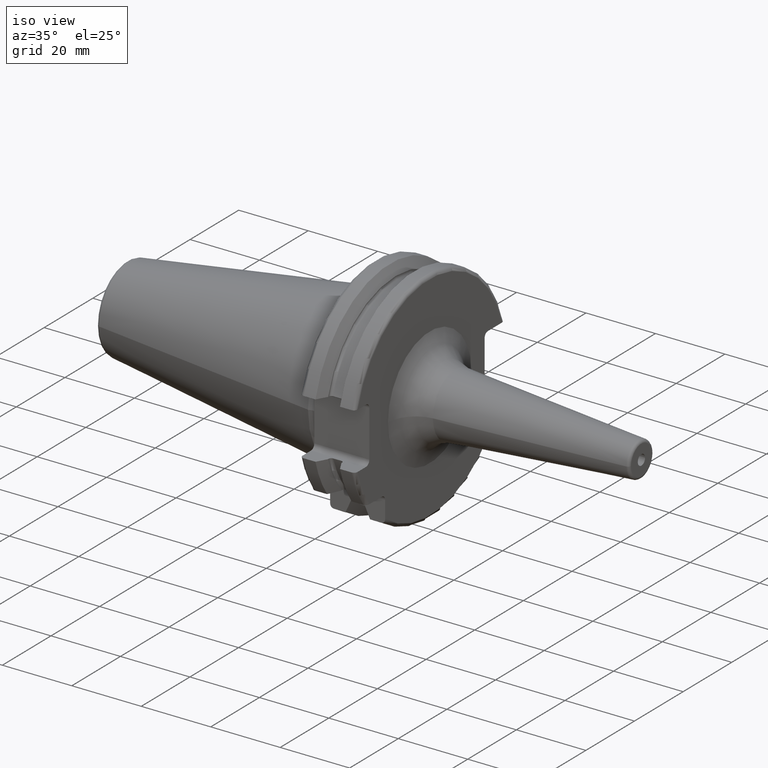
[diagram: clean part render]
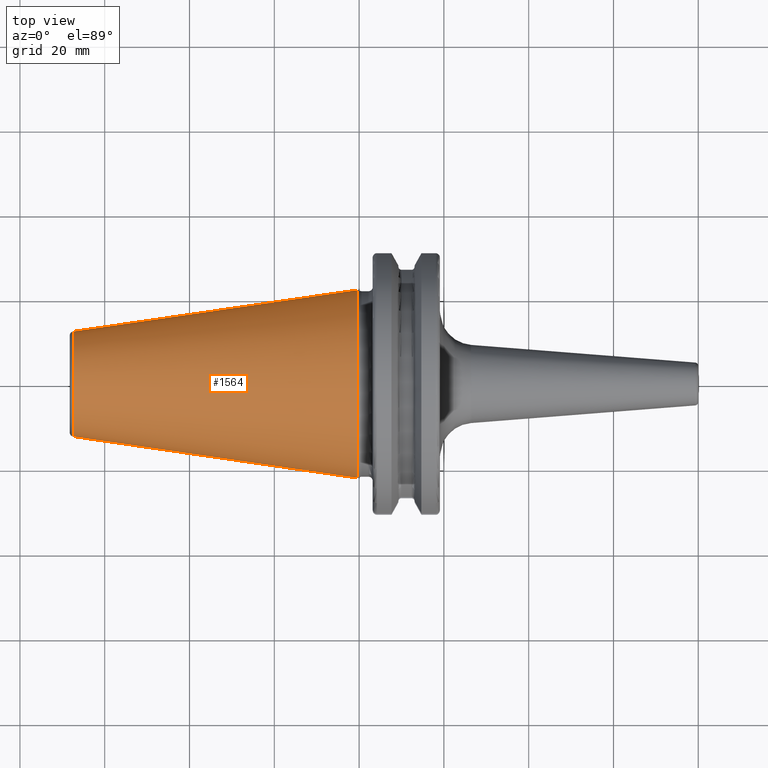
[diagram: tour spotlight — one face highlighted and labeled with its STEP entity id]
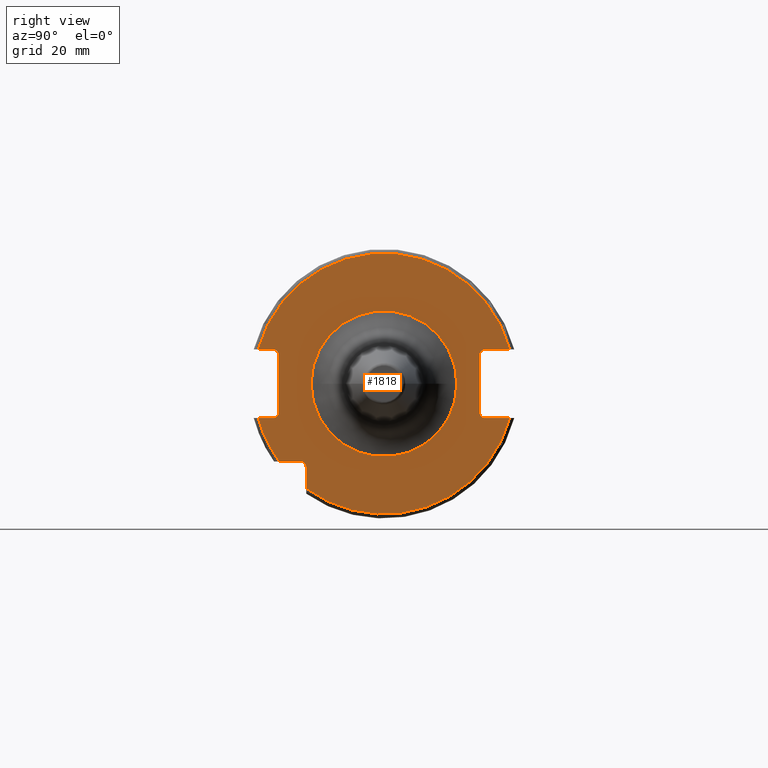
[diagram: tour spotlight — one face highlighted and labeled with its STEP entity id]
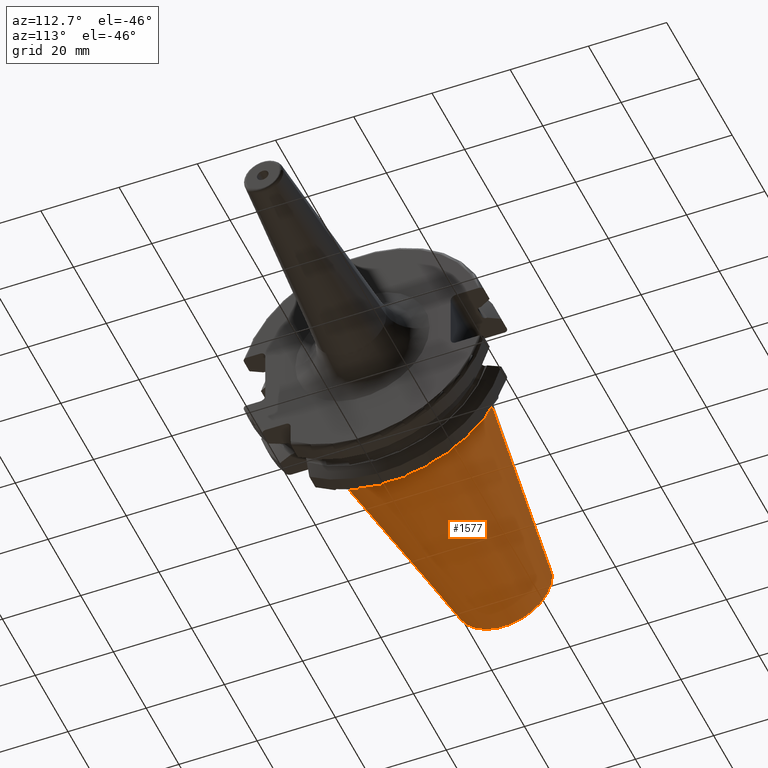
[diagram: tour spotlight — one face highlighted and labeled with its STEP entity id]
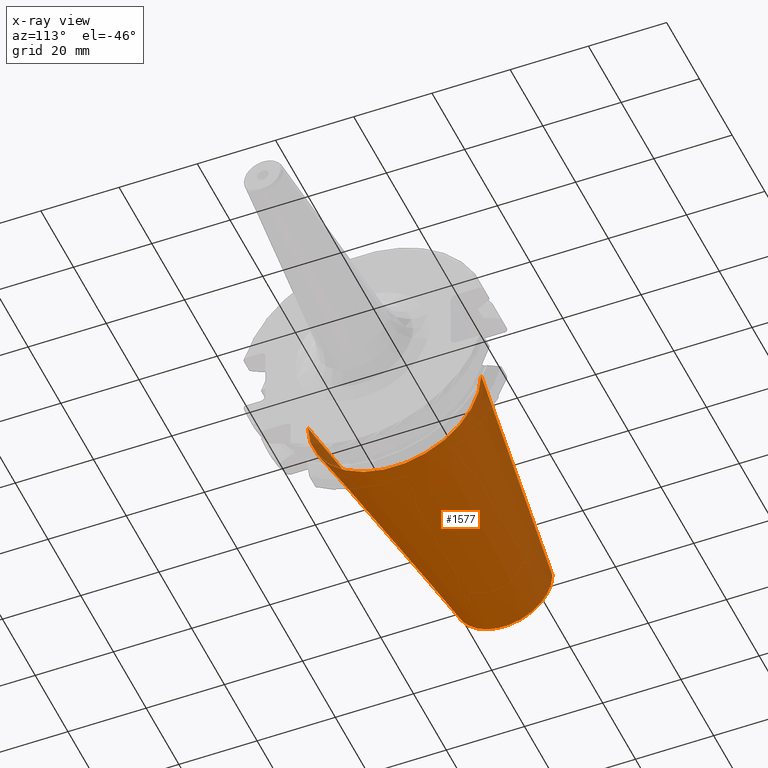
[diagram: x-ray of the same camera — body ghosted, this tour face saturated]
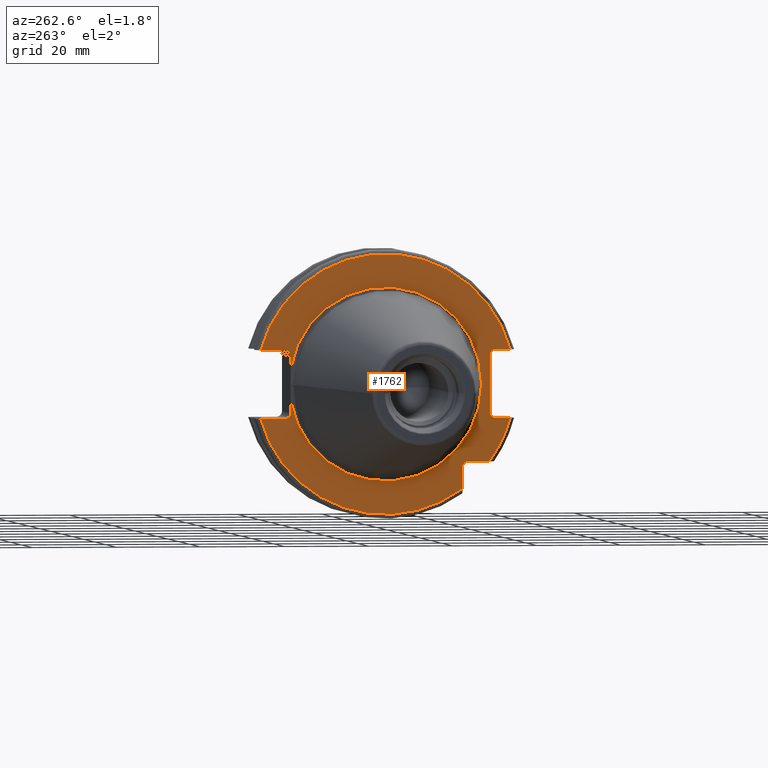
[diagram: tour spotlight — one face highlighted and labeled with its STEP entity id]
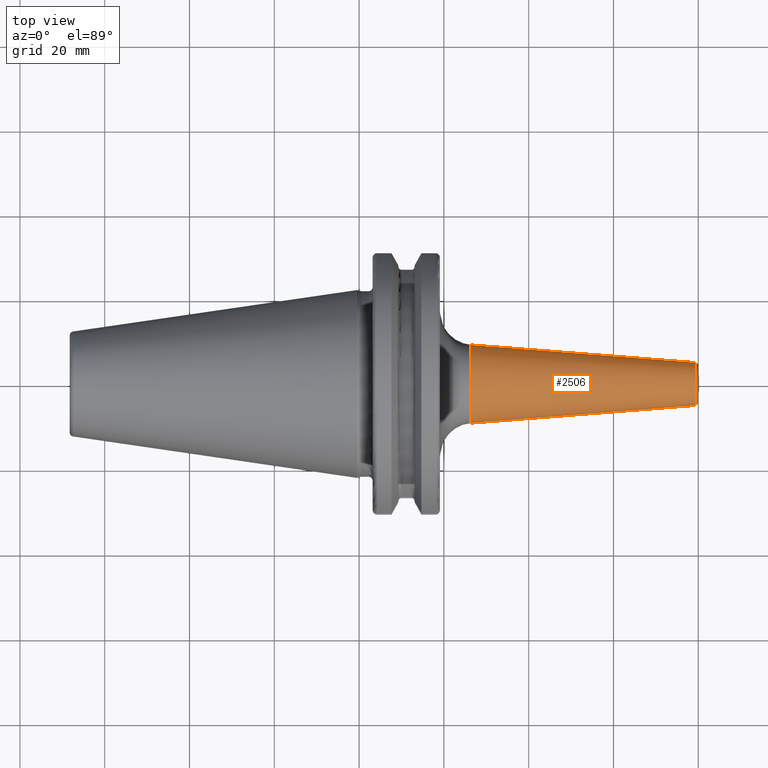
[diagram: tour spotlight — one face highlighted and labeled with its STEP entity id]
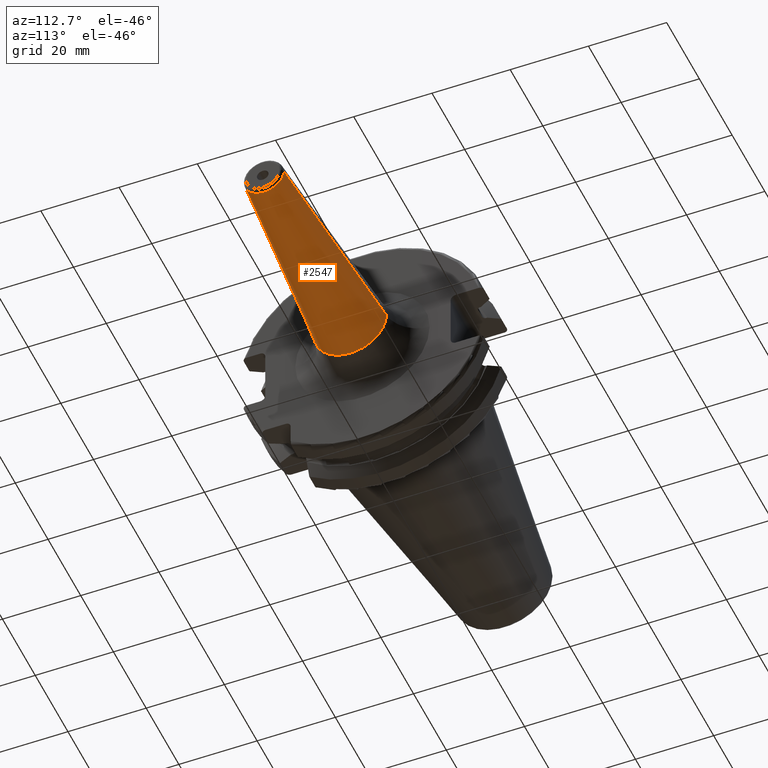
[diagram: tour spotlight — one face highlighted and labeled with its STEP entity id]
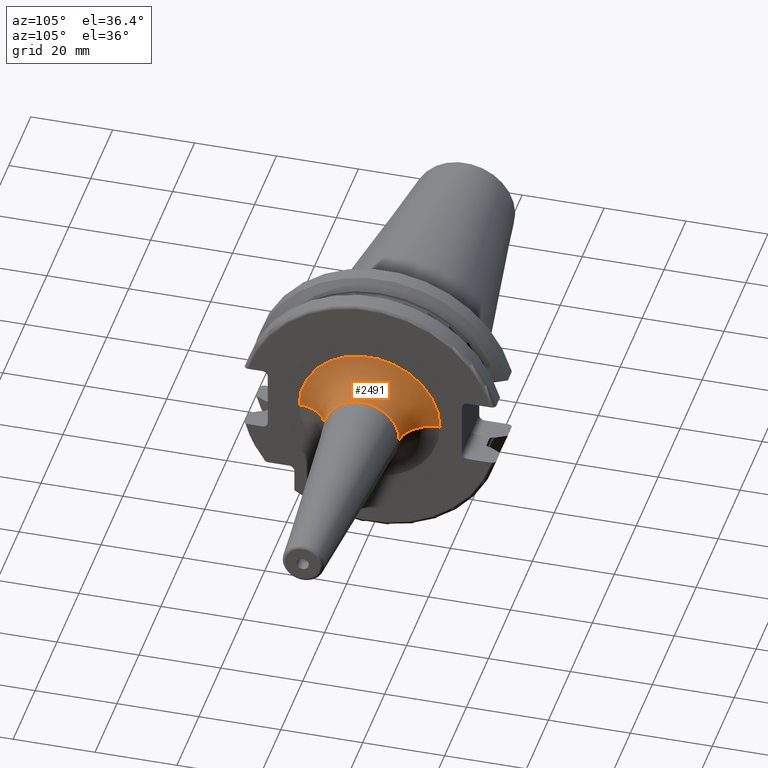
[diagram: tour spotlight — one face highlighted and labeled with its STEP entity id]
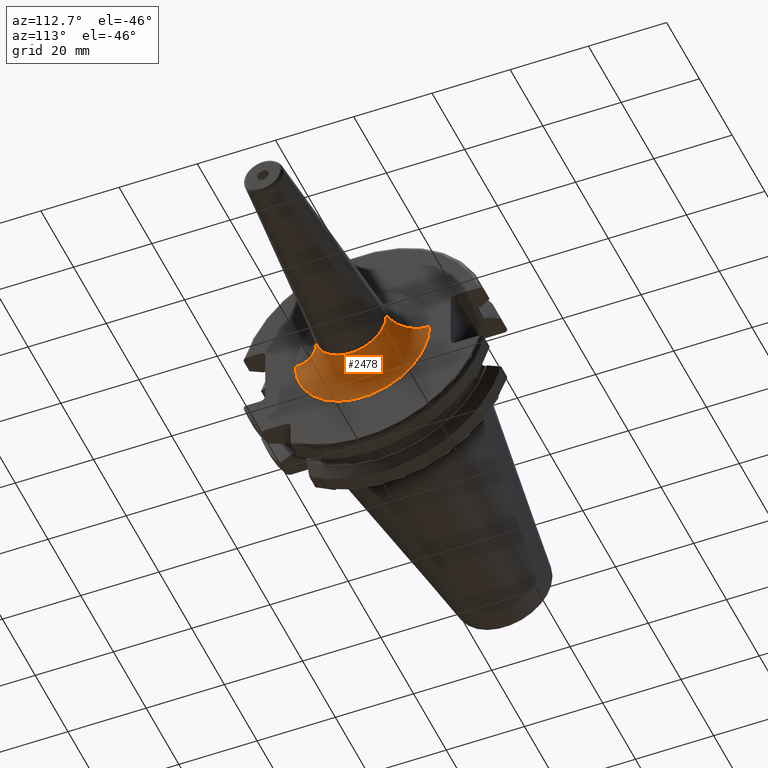
[diagram: tour spotlight — one face highlighted and labeled with its STEP entity id]
A machine part: a face-by-face anatomy tour. The part has 95 B-rep faces; the first image is the clean iso view, then the 8 largest visible faces are spotlighted one at a time (largest first), each with its STEP entity span.

Face 1 — top view, entity #1564. In plain terms, the highlighted conical surface has half-angle 8.298 deg.
Definition (entity closure, byte-faithful):
#37=CARTESIAN_POINT('',(-6.743710273571E1,0.E0,0.E0));
#38=DIRECTION('',(1.E0,0.E0,0.E0));
#39=DIRECTION('',(0.E0,1.E0,0.E0));
#40=AXIS2_PLACEMENT_3D('',#37,#38,#39);
#42=CARTESIAN_POINT('',(-4.896823332305E-1,0.E0,0.E0));
#43=DIRECTION('',(1.E0,0.E0,0.E0));
#44=DIRECTION('',(0.E0,1.E0,0.E0));
#45=AXIS2_PLACEMENT_3D('',#42,#43,#44);
#47=DIRECTION('',(-9.895312636440E-1,-1.443186691705E-1,0.E0));
#48=VECTOR('',#47,6.765568998391E1);
#49=CARTESIAN_POINT('',(-4.896823332305E-1,2.215358204157E1,0.E0));
#50=LINE('',#49,#48);
#51=DIRECTION('',(-9.895312636440E-1,1.443186691705E-1,0.E0));
#52=VECTOR('',#51,6.765568998391E1);
#53=CARTESIAN_POINT('',(-4.896823332305E-1,-2.215358204157E1,0.E0));
#54=LINE('',#53,#52);
#1246=CARTESIAN_POINT('',(-6.743710273571E1,1.238960290128E1,0.E0));
#1248=VERTEX_POINT('',#1246);
#1250=CARTESIAN_POINT('',(-6.743710273571E1,-1.238960290128E1,0.E0));
#1252=VERTEX_POINT('',#1250);
#1314=CARTESIAN_POINT('',(-4.896823332305E-1,2.215358204157E1,0.E0));
#1315=VERTEX_POINT('',#1314);
#1316=CARTESIAN_POINT('',(-4.896823332305E-1,-2.215358204157E1,0.E0));
#1317=VERTEX_POINT('',#1316);
#1550=CARTESIAN_POINT('',(-3.396339253447E1,0.E0,0.E0));
#1551=DIRECTION('',(1.E0,0.E0,0.E0));
#1552=DIRECTION('',(0.E0,-1.E0,0.E0));
#1553=AXIS2_PLACEMENT_3D('',#1550,#1551,#1552);
#1554=CONICAL_SURFACE('',#1553,1.727159247143E1,8.297826828206E0);
#1556=ORIENTED_EDGE('',*,*,#1555,.F.);
#1558=ORIENTED_EDGE('',*,*,#1557,.T.);
#1560=ORIENTED_EDGE('',*,*,#1559,.T.);
#1561=ORIENTED_EDGE('',*,*,#1543,.F.);
#1562=EDGE_LOOP('',(#1556,#1558,#1560,#1561));
#1563=FACE_OUTER_BOUND('',#1562,.F.);
#1564=ADVANCED_FACE('',(#1563),#1554,.T.);
#41=CIRCLE('',#40,1.238960290128E1);
#46=CIRCLE('',#45,2.215358204157E1);
#1543=EDGE_CURVE('',#1248,#1252,#41,.T.);
#1555=EDGE_CURVE('',#1315,#1248,#50,.T.);
#1557=EDGE_CURVE('',#1315,#1317,#46,.T.);
#1559=EDGE_CURVE('',#1317,#1252,#54,.T.);

Face 2 — right view, entity #1818. In plain terms, the highlighted planar face has unit normal (1, 0, 0).
Definition (entity closure, byte-faithful):
#130=CARTESIAN_POINT('',(1.905E1,2.39E1,-6.75E0));
#131=DIRECTION('',(-1.E0,0.E0,0.E0));
#132=DIRECTION('',(0.E0,0.E0,-1.E0));
#133=AXIS2_PLACEMENT_3D('',#130,#131,#132);
#195=CARTESIAN_POINT('',(1.905E1,2.39E1,6.75E0));
#196=DIRECTION('',(-1.E0,0.E0,0.E0));
#197=DIRECTION('',(0.E0,-1.E0,0.E0));
#198=AXIS2_PLACEMENT_3D('',#195,#196,#197);
#205=DIRECTION('',(0.E0,-1.E0,0.E0));
#206=VECTOR('',#205,5.776950757280E0);
#207=CARTESIAN_POINT('',(1.905E1,2.967695075728E1,8.1E0));
#208=LINE('',#207,#206);
#209=DIRECTION('',(0.E0,0.E0,-1.E0));
#210=VECTOR('',#209,1.35E1);
#211=CARTESIAN_POINT('',(1.905E1,2.255E1,6.75E0));
#212=LINE('',#211,#210);
#213=DIRECTION('',(0.E0,-1.E0,0.E0));
#214=VECTOR('',#213,5.776950757280E0);
#215=CARTESIAN_POINT('',(1.905E1,2.967695075728E1,-8.1E0));
#216=LINE('',#215,#214);
#217=DIRECTION('',(0.E0,0.E0,1.E0));
#218=VECTOR('',#217,4.990259339464E0);
#219=CARTESIAN_POINT('',(1.905E1,-1.835E1,-2.469025933946E1));
#220=LINE('',#219,#218);
#221=DIRECTION('',(0.E0,-1.E0,0.E0));
#222=VECTOR('',#221,4.990259339464E0);
#223=CARTESIAN_POINT('',(1.905E1,-1.97E1,-1.835E1));
#224=LINE('',#223,#222);
#225=DIRECTION('',(0.E0,1.E0,0.E0));
#226=VECTOR('',#225,3.476950757280E0);
#227=CARTESIAN_POINT('',(1.905E1,-2.967695075728E1,-8.1E0));
#228=LINE('',#227,#226);
#229=DIRECTION('',(0.E0,0.E0,1.E0));
#230=VECTOR('',#229,1.35E1);
#231=CARTESIAN_POINT('',(1.905E1,-2.485E1,-6.75E0));
#232=LINE('',#231,#230);
#233=DIRECTION('',(0.E0,1.E0,0.E0));
#234=VECTOR('',#233,3.476950757280E0);
#235=CARTESIAN_POINT('',(1.905E1,-2.967695075728E1,8.1E0));
#236=LINE('',#235,#234);
#237=CARTESIAN_POINT('',(1.905E1,0.E0,0.E0));
#238=DIRECTION('',(1.E0,0.E0,0.E0));
#239=DIRECTION('',(0.E0,-1.E0,0.E0));
#240=AXIS2_PLACEMENT_3D('',#237,#238,#239);
#242=CARTESIAN_POINT('',(1.905E1,0.E0,0.E0));
#243=DIRECTION('',(1.E0,0.E0,0.E0));
#244=DIRECTION('',(0.E0,1.E0,0.E0));
#245=AXIS2_PLACEMENT_3D('',#242,#243,#244);
#251=CARTESIAN_POINT('',(1.905E1,2.967695075728E1,8.1E0));
#262=CARTESIAN_POINT('',(1.905E1,0.E0,0.E0));
#263=DIRECTION('',(1.E0,0.E0,0.E0));
#264=DIRECTION('',(0.E0,9.647119303464E-1,2.633075985372E-1));
#265=AXIS2_PLACEMENT_3D('',#262,#263,#264);
#276=CARTESIAN_POINT('',(1.905E1,-2.967695075728E1,8.1E0));
#282=CARTESIAN_POINT('',(1.905E1,-2.62E1,6.75E0));
#283=DIRECTION('',(-1.E0,0.E0,0.E0));
#284=DIRECTION('',(0.E0,0.E0,1.E0));
#285=AXIS2_PLACEMENT_3D('',#282,#283,#284);
#300=CARTESIAN_POINT('',(1.905E1,-2.62E1,-6.75E0));
#301=DIRECTION('',(-1.E0,0.E0,0.E0));
#302=DIRECTION('',(0.E0,1.E0,0.E0));
#303=AXIS2_PLACEMENT_3D('',#300,#301,#302);
#323=CARTESIAN_POINT('',(1.905E1,2.967695075728E1,-8.1E0));
#336=CARTESIAN_POINT('',(1.905E1,0.E0,0.E0));
#337=DIRECTION('',(-1.E0,0.E0,0.E0));
#338=DIRECTION('',(0.E0,9.647119303464E-1,-2.633075985372E-1));
#339=AXIS2_PLACEMENT_3D('',#336,#337,#338);
#341=CARTESIAN_POINT('',(1.905E1,-2.967695075728E1,-8.1E0));
#352=CARTESIAN_POINT('',(1.905E1,0.E0,0.E0));
#353=DIRECTION('',(-1.E0,0.E0,0.E0));
#354=DIRECTION('',(0.E0,-8.026089992512E-1,-5.965054855750E-1));
#355=AXIS2_PLACEMENT_3D('',#352,#353,#354);
#767=CARTESIAN_POINT('',(1.905E1,-1.97E1,-1.97E1));
#768=DIRECTION('',(-1.E0,0.E0,0.E0));
#769=DIRECTION('',(0.E0,0.E0,1.E0));
#770=AXIS2_PLACEMENT_3D('',#767,#768,#769);
#1403=VERTEX_POINT('',#251);
#1404=VERTEX_POINT('',#276);
#1407=VERTEX_POINT('',#323);
#1408=VERTEX_POINT('',#341);
#1419=CARTESIAN_POINT('',(1.905E1,-1.835E1,-2.469025933946E1));
#1420=VERTEX_POINT('',#1419);
#1427=CARTESIAN_POINT('',(1.905E1,2.39E1,-8.1E0));
#1429=VERTEX_POINT('',#1427);
#1431=CARTESIAN_POINT('',(1.905E1,2.255E1,-6.75E0));
#1433=VERTEX_POINT('',#1431);
#1435=CARTESIAN_POINT('',(1.905E1,2.255E1,6.75E0));
#1437=VERTEX_POINT('',#1435);
#1439=CARTESIAN_POINT('',(1.905E1,2.39E1,8.1E0));
#1441=VERTEX_POINT('',#1439);
#1443=CARTESIAN_POINT('',(1.905E1,-2.485E1,-6.75E0));
#1445=VERTEX_POINT('',#1443);
#1447=CARTESIAN_POINT('',(1.905E1,-2.62E1,-8.1E0));
#1449=VERTEX_POINT('',#1447);
#1451=CARTESIAN_POINT('',(1.905E1,-2.62E1,8.1E0));
#1453=VERTEX_POINT('',#1451);
#1455=CARTESIAN_POINT('',(1.905E1,-2.485E1,6.75E0));
#1457=VERTEX_POINT('',#1455);
#1459=CARTESIAN_POINT('',(1.905E1,-1.97E1,-1.835E1));
#1460=CARTESIAN_POINT('',(1.905E1,-2.469025933946E1,-1.835E1));
#1461=VERTEX_POINT('',#1459);
#1462=VERTEX_POINT('',#1460);
#1463=CARTESIAN_POINT('',(1.905E1,-1.835E1,-1.97E1));
#1464=VERTEX_POINT('',#1463);
#1480=CARTESIAN_POINT('',(1.905E1,-1.719199296423E1,0.E0));
#1481=CARTESIAN_POINT('',(1.905E1,1.719199296423E1,0.E0));
#1482=VERTEX_POINT('',#1480);
#1483=VERTEX_POINT('',#1481);
#1777=CARTESIAN_POINT('',(1.905E1,0.E0,0.E0));
#1778=DIRECTION('',(1.E0,0.E0,0.E0));
#1779=DIRECTION('',(0.E0,-1.E0,0.E0));
#1780=AXIS2_PLACEMENT_3D('',#1777,#1778,#1779);
#1781=PLANE('',#1780);
#1783=ORIENTED_EDGE('',*,*,#1782,.T.);
#1784=ORIENTED_EDGE('',*,*,#1769,.F.);
#1785=ORIENTED_EDGE('',*,*,#1658,.T.);
#1786=ORIENTED_EDGE('',*,*,#1679,.F.);
#1787=ORIENTED_EDGE('',*,*,#1717,.F.);
#1789=ORIENTED_EDGE('',*,*,#1788,.T.);
#1791=ORIENTED_EDGE('',*,*,#1790,.T.);
#1793=ORIENTED_EDGE('',*,*,#1792,.F.);
#1795=ORIENTED_EDGE('',*,*,#1794,.T.);
#1797=ORIENTED_EDGE('',*,*,#1796,.T.);
#1799=ORIENTED_EDGE('',*,*,#1798,.T.);
#1801=ORIENTED_EDGE('',*,*,#1800,.F.);
#1803=ORIENTED_EDGE('',*,*,#1802,.T.);
#1805=ORIENTED_EDGE('',*,*,#1804,.F.);
#1807=ORIENTED_EDGE('',*,*,#1806,.F.);
#1809=ORIENTED_EDGE('',*,*,#1808,.F.);
#1810=EDGE_LOOP('',(#1783,#1784,#1785,#1786,#1787,#1789,#1791,#1793,#1795,#1797,
#1799,#1801,#1803,#1805,#1807,#1809));
#1811=FACE_OUTER_BOUND('',#1810,.F.);
#1813=ORIENTED_EDGE('',*,*,#1812,.T.);
#1815=ORIENTED_EDGE('',*,*,#1814,.T.);
#1816=EDGE_LOOP('',(#1813,#1815));
#1817=FACE_BOUND('',#1816,.F.);
#1818=ADVANCED_FACE('',(#1811,#1817),#1781,.T.);
#134=CIRCLE('',#133,1.35E0);
#199=CIRCLE('',#198,1.35E0);
#241=CIRCLE('',#240,1.719199296423E1);
#246=CIRCLE('',#245,1.719199296423E1);
#266=CIRCLE('',#265,3.07625E1);
#286=CIRCLE('',#285,1.35E0);
#304=CIRCLE('',#303,1.35E0);
#340=CIRCLE('',#339,3.07625E1);
#356=CIRCLE('',#355,3.07625E1);
#771=CIRCLE('',#770,1.35E0);
#1658=EDGE_CURVE('',#1437,#1433,#212,.T.);
#1679=EDGE_CURVE('',#1429,#1433,#134,.T.);
#1717=EDGE_CURVE('',#1407,#1429,#216,.T.);
#1769=EDGE_CURVE('',#1437,#1441,#199,.T.);
#1782=EDGE_CURVE('',#1403,#1441,#208,.T.);
#1788=EDGE_CURVE('',#1407,#1420,#340,.T.);
#1790=EDGE_CURVE('',#1420,#1464,#220,.T.);
#1792=EDGE_CURVE('',#1461,#1464,#771,.T.);
#1794=EDGE_CURVE('',#1461,#1462,#224,.T.);
#1796=EDGE_CURVE('',#1462,#1408,#356,.T.);
#1798=EDGE_CURVE('',#1408,#1449,#228,.T.);
#1800=EDGE_CURVE('',#1445,#1449,#304,.T.);
#1802=EDGE_CURVE('',#1445,#1457,#232,.T.);
#1804=EDGE_CURVE('',#1453,#1457,#286,.T.);
#1806=EDGE_CURVE('',#1404,#1453,#236,.T.);
#1808=EDGE_CURVE('',#1403,#1404,#266,.T.);
#1812=EDGE_CURVE('',#1482,#1483,#241,.T.);
#1814=EDGE_CURVE('',#1483,#1482,#246,.T.);

Face 3 — auxiliary view, entity #1577. An x-ray twin of the same camera follows (body ghosted, this face saturated) — the face is partly hidden behind the body. In plain terms, the highlighted conical surface has half-angle 8.298 deg.
Definition (entity closure, byte-faithful):
#32=CARTESIAN_POINT('',(-6.743710273571E1,0.E0,0.E0));
#33=DIRECTION('',(-1.E0,0.E0,0.E0));
#34=DIRECTION('',(0.E0,1.E0,0.E0));
#35=AXIS2_PLACEMENT_3D('',#32,#33,#34);
#47=DIRECTION('',(-9.895312636440E-1,-1.443186691705E-1,0.E0));
#48=VECTOR('',#47,6.765568998391E1);
#49=CARTESIAN_POINT('',(-4.896823332305E-1,2.215358204157E1,0.E0));
#50=LINE('',#49,#48);
#51=DIRECTION('',(-9.895312636440E-1,1.443186691705E-1,0.E0));
#52=VECTOR('',#51,6.765568998391E1);
#53=CARTESIAN_POINT('',(-4.896823332305E-1,-2.215358204157E1,0.E0));
#54=LINE('',#53,#52);
#55=CARTESIAN_POINT('',(-4.896823332305E-1,0.E0,0.E0));
#56=DIRECTION('',(-1.E0,0.E0,0.E0));
#57=DIRECTION('',(0.E0,1.E0,0.E0));
#58=AXIS2_PLACEMENT_3D('',#55,#56,#57);
#1246=CARTESIAN_POINT('',(-6.743710273571E1,1.238960290128E1,0.E0));
#1248=VERTEX_POINT('',#1246);
#1250=CARTESIAN_POINT('',(-6.743710273571E1,-1.238960290128E1,0.E0));
#1252=VERTEX_POINT('',#1250);
#1314=CARTESIAN_POINT('',(-4.896823332305E-1,2.215358204157E1,0.E0));
#1315=VERTEX_POINT('',#1314);
#1316=CARTESIAN_POINT('',(-4.896823332305E-1,-2.215358204157E1,0.E0));
#1317=VERTEX_POINT('',#1316);
#1565=CARTESIAN_POINT('',(-3.396339253447E1,0.E0,0.E0));
#1566=DIRECTION('',(1.E0,0.E0,0.E0));
#1567=DIRECTION('',(0.E0,-1.E0,0.E0));
#1568=AXIS2_PLACEMENT_3D('',#1565,#1566,#1567);
#1569=CONICAL_SURFACE('',#1568,1.727159247143E1,8.297826828206E0);
#1570=ORIENTED_EDGE('',*,*,#1555,.T.);
#1571=ORIENTED_EDGE('',*,*,#1532,.T.);
#1572=ORIENTED_EDGE('',*,*,#1559,.F.);
#1574=ORIENTED_EDGE('',*,*,#1573,.F.);
#1575=EDGE_LOOP('',(#1570,#1571,#1572,#1574));
#1576=FACE_OUTER_BOUND('',#1575,.F.);
#1577=ADVANCED_FACE('',(#1576),#1569,.T.);
#36=CIRCLE('',#35,1.238960290128E1);
#59=CIRCLE('',#58,2.215358204157E1);
#1532=EDGE_CURVE('',#1248,#1252,#36,.T.);
#1555=EDGE_CURVE('',#1315,#1248,#50,.T.);
#1559=EDGE_CURVE('',#1317,#1252,#54,.T.);
#1573=EDGE_CURVE('',#1315,#1317,#59,.T.);

Face 4 — auxiliary view, entity #1762. In plain terms, the highlighted planar face has unit normal (1, 0, 0).
Definition (entity closure, byte-faithful):
#105=CARTESIAN_POINT('',(3.2E0,2.255E1,-3.842281223440E0));
#117=CARTESIAN_POINT('',(3.2E0,0.E0,0.E0));
#118=DIRECTION('',(-1.E0,0.E0,0.E0));
#119=DIRECTION('',(0.E0,9.857923497268E-1,-1.679685780739E-1));
#120=AXIS2_PLACEMENT_3D('',#117,#118,#119);
#135=CARTESIAN_POINT('',(3.2E0,2.39E1,-6.75E0));
#136=DIRECTION('',(1.E0,0.E0,0.E0));
#137=DIRECTION('',(0.E0,-1.E0,0.E0));
#138=AXIS2_PLACEMENT_3D('',#135,#136,#137);
#144=DIRECTION('',(0.E0,0.E0,-1.E0));
#145=VECTOR('',#144,2.907718776560E0);
#146=CARTESIAN_POINT('',(3.2E0,2.255E1,6.75E0));
#147=LINE('',#146,#145);
#148=DIRECTION('',(0.E0,-1.E0,0.E0));
#149=VECTOR('',#148,5.776950757280E0);
#150=CARTESIAN_POINT('',(3.2E0,2.967695075728E1,8.1E0));
#151=LINE('',#150,#149);
#152=CARTESIAN_POINT('',(3.2E0,0.E0,0.E0));
#153=DIRECTION('',(1.E0,0.E0,0.E0));
#154=DIRECTION('',(0.E0,9.647119303464E-1,2.633075985372E-1));
#155=AXIS2_PLACEMENT_3D('',#152,#153,#154);
#157=DIRECTION('',(0.E0,1.E0,0.E0));
#158=VECTOR('',#157,3.476950757280E0);
#159=CARTESIAN_POINT('',(3.2E0,-2.967695075728E1,8.1E0));
#160=LINE('',#159,#158);
#161=DIRECTION('',(0.E0,0.E0,1.E0));
#162=VECTOR('',#161,1.35E1);
#163=CARTESIAN_POINT('',(3.2E0,-2.485E1,-6.75E0));
#164=LINE('',#163,#162);
#165=DIRECTION('',(0.E0,1.E0,0.E0));
#166=VECTOR('',#165,3.476950757280E0);
#167=CARTESIAN_POINT('',(3.2E0,-2.967695075728E1,-8.1E0));
#168=LINE('',#167,#166);
#169=CARTESIAN_POINT('',(3.2E0,0.E0,0.E0));
#170=DIRECTION('',(-1.E0,0.E0,0.E0));
#171=DIRECTION('',(0.E0,-8.026089992512E-1,-5.965054855750E-1));
#172=AXIS2_PLACEMENT_3D('',#169,#170,#171);
#174=DIRECTION('',(0.E0,-1.E0,0.E0));
#175=VECTOR('',#174,4.990259339464E0);
#176=CARTESIAN_POINT('',(3.2E0,-1.97E1,-1.835E1));
#177=LINE('',#176,#175);
#178=DIRECTION('',(0.E0,0.E0,1.E0));
#179=VECTOR('',#178,4.990259339464E0);
#180=CARTESIAN_POINT('',(3.2E0,-1.835E1,-2.469025933946E1));
#181=LINE('',#180,#179);
#182=CARTESIAN_POINT('',(3.2E0,0.E0,0.E0));
#183=DIRECTION('',(-1.E0,0.E0,0.E0));
#184=DIRECTION('',(0.E0,9.647119303464E-1,-2.633075985372E-1));
#185=AXIS2_PLACEMENT_3D('',#182,#183,#184);
#187=DIRECTION('',(0.E0,-1.E0,0.E0));
#188=VECTOR('',#187,5.776950757280E0);
#189=CARTESIAN_POINT('',(3.2E0,2.967695075728E1,-8.1E0));
#190=LINE('',#189,#188);
#191=DIRECTION('',(0.E0,0.E0,-1.E0));
#192=VECTOR('',#191,2.907718776560E0);
#193=CARTESIAN_POINT('',(3.2E0,2.255E1,-3.842281223440E0));
#194=LINE('',#193,#192);
#200=CARTESIAN_POINT('',(3.2E0,2.39E1,6.75E0));
#201=DIRECTION('',(1.E0,0.E0,0.E0));
#202=DIRECTION('',(0.E0,0.E0,1.E0));
#203=AXIS2_PLACEMENT_3D('',#200,#201,#202);
#287=CARTESIAN_POINT('',(3.2E0,-2.62E1,6.75E0));
#288=DIRECTION('',(1.E0,0.E0,0.E0));
#289=DIRECTION('',(0.E0,1.E0,0.E0));
#290=AXIS2_PLACEMENT_3D('',#287,#288,#289);
#305=CARTESIAN_POINT('',(3.2E0,-2.62E1,-6.75E0));
#306=DIRECTION('',(1.E0,0.E0,0.E0));
#307=DIRECTION('',(0.E0,0.E0,-1.E0));
#308=AXIS2_PLACEMENT_3D('',#305,#306,#307);
#430=CARTESIAN_POINT('',(3.2E0,2.967695075728E1,-8.1E0));
#466=CARTESIAN_POINT('',(3.2E0,-2.967695075728E1,-8.1E0));
#772=CARTESIAN_POINT('',(3.2E0,-1.97E1,-1.97E1));
#773=DIRECTION('',(1.E0,0.E0,0.E0));
#774=DIRECTION('',(0.E0,1.E0,0.E0));
#775=AXIS2_PLACEMENT_3D('',#772,#773,#774);
#920=CARTESIAN_POINT('',(3.2E0,2.967695075728E1,8.1E0));
#927=CARTESIAN_POINT('',(3.2E0,-2.967695075728E1,8.1E0));
#1024=CARTESIAN_POINT('',(3.2E0,2.255E1,3.842281223440E0));
#1035=CARTESIAN_POINT('',(3.2E0,0.E0,0.E0));
#1036=DIRECTION('',(1.E0,0.E0,0.E0));
#1037=DIRECTION('',(0.E0,9.857923497268E-1,1.679685780739E-1));
#1038=AXIS2_PLACEMENT_3D('',#1035,#1036,#1037);
#1258=CARTESIAN_POINT('',(3.2E0,-2.2875E1,0.E0));
#1260=VERTEX_POINT('',#1258);
#1400=VERTEX_POINT('',#1024);
#1402=VERTEX_POINT('',#105);
#1405=VERTEX_POINT('',#920);
#1406=VERTEX_POINT('',#927);
#1409=VERTEX_POINT('',#430);
#1410=VERTEX_POINT('',#466);
#1425=CARTESIAN_POINT('',(3.2E0,-1.835E1,-2.469025933946E1));
#1426=VERTEX_POINT('',#1425);
#1428=CARTESIAN_POINT('',(3.2E0,2.39E1,-8.1E0));
#1430=VERTEX_POINT('',#1428);
#1432=CARTESIAN_POINT('',(3.2E0,2.255E1,-6.75E0));
#1434=VERTEX_POINT('',#1432);
#1436=CARTESIAN_POINT('',(3.2E0,2.255E1,6.75E0));
#1438=VERTEX_POINT('',#1436);
#1440=CARTESIAN_POINT('',(3.2E0,2.39E1,8.1E0));
#1442=VERTEX_POINT('',#1440);
#1444=CARTESIAN_POINT('',(3.2E0,-2.485E1,-6.75E0));
#1446=VERTEX_POINT('',#1444);
#1448=CARTESIAN_POINT('',(3.2E0,-2.62E1,-8.1E0));
#1450=VERTEX_POINT('',#1448);
#1452=CARTESIAN_POINT('',(3.2E0,-2.62E1,8.1E0));
#1454=VERTEX_POINT('',#1452);
#1456=CARTESIAN_POINT('',(3.2E0,-2.485E1,6.75E0));
#1458=VERTEX_POINT('',#1456);
#1465=CARTESIAN_POINT('',(3.2E0,-1.97E1,-1.835E1));
#1466=CARTESIAN_POINT('',(3.2E0,-2.469025933946E1,-1.835E1));
#1467=VERTEX_POINT('',#1465);
#1468=VERTEX_POINT('',#1466);
#1469=CARTESIAN_POINT('',(3.2E0,-1.835E1,-1.97E1));
#1470=VERTEX_POINT('',#1469);
#1722=CARTESIAN_POINT('',(3.2E0,0.E0,0.E0));
#1723=DIRECTION('',(1.E0,0.E0,0.E0));
#1724=DIRECTION('',(0.E0,-1.E0,0.E0));
#1725=AXIS2_PLACEMENT_3D('',#1722,#1723,#1724);
#1726=PLANE('',#1725);
#1727=ORIENTED_EDGE('',*,*,#1662,.F.);
#1729=ORIENTED_EDGE('',*,*,#1728,.F.);
#1731=ORIENTED_EDGE('',*,*,#1730,.F.);
#1733=ORIENTED_EDGE('',*,*,#1732,.T.);
#1735=ORIENTED_EDGE('',*,*,#1734,.T.);
#1737=ORIENTED_EDGE('',*,*,#1736,.F.);
#1739=ORIENTED_EDGE('',*,*,#1738,.F.);
#1741=ORIENTED_EDGE('',*,*,#1740,.F.);
#1743=ORIENTED_EDGE('',*,*,#1742,.F.);
#1745=ORIENTED_EDGE('',*,*,#1744,.F.);
#1747=ORIENTED_EDGE('',*,*,#1746,.F.);
#1749=ORIENTED_EDGE('',*,*,#1748,.F.);
#1751=ORIENTED_EDGE('',*,*,#1750,.F.);
#1753=ORIENTED_EDGE('',*,*,#1752,.F.);
#1754=ORIENTED_EDGE('',*,*,#1693,.T.);
#1755=ORIENTED_EDGE('',*,*,#1682,.F.);
#1756=ORIENTED_EDGE('',*,*,#1667,.F.);
#1757=ORIENTED_EDGE('',*,*,#1646,.T.);
#1759=ORIENTED_EDGE('',*,*,#1758,.F.);
#1760=EDGE_LOOP('',(#1727,#1729,#1731,#1733,#1735,#1737,#1739,#1741,#1743,#1745,
#1747,#1749,#1751,#1753,#1754,#1755,#1756,#1757,#1759));
#1761=FACE_OUTER_BOUND('',#1760,.F.);
#1762=ADVANCED_FACE('',(#1761),#1726,.F.);
#121=CIRCLE('',#120,2.2875E1);
#139=CIRCLE('',#138,1.35E0);
#156=CIRCLE('',#155,3.07625E1);
#173=CIRCLE('',#172,3.07625E1);
#186=CIRCLE('',#185,3.07625E1);
#204=CIRCLE('',#203,1.35E0);
#291=CIRCLE('',#290,1.35E0);
#309=CIRCLE('',#308,1.35E0);
#776=CIRCLE('',#775,1.35E0);
#1039=CIRCLE('',#1038,2.2875E1);
#1646=EDGE_CURVE('',#1402,#1260,#121,.T.);
#1662=EDGE_CURVE('',#1438,#1400,#147,.T.);
#1667=EDGE_CURVE('',#1402,#1434,#194,.T.);
#1682=EDGE_CURVE('',#1434,#1430,#139,.T.);
#1693=EDGE_CURVE('',#1409,#1430,#190,.T.);
#1728=EDGE_CURVE('',#1442,#1438,#204,.T.);
#1730=EDGE_CURVE('',#1405,#1442,#151,.T.);
#1732=EDGE_CURVE('',#1405,#1406,#156,.T.);
#1734=EDGE_CURVE('',#1406,#1454,#160,.T.);
#1736=EDGE_CURVE('',#1458,#1454,#291,.T.);
#1738=EDGE_CURVE('',#1446,#1458,#164,.T.);
#1740=EDGE_CURVE('',#1450,#1446,#309,.T.);
#1742=EDGE_CURVE('',#1410,#1450,#168,.T.);
#1744=EDGE_CURVE('',#1468,#1410,#173,.T.);
#1746=EDGE_CURVE('',#1467,#1468,#177,.T.);
#1748=EDGE_CURVE('',#1470,#1467,#776,.T.);
#1750=EDGE_CURVE('',#1426,#1470,#181,.T.);
#1752=EDGE_CURVE('',#1409,#1426,#186,.T.);
#1758=EDGE_CURVE('',#1400,#1260,#1039,.T.);

Face 5 — top view, entity #2506. In plain terms, the highlighted conical surface has half-angle 4.5 deg.
Definition (entity closure, byte-faithful):
#948=CARTESIAN_POINT('',(7.926276727658E1,0.E0,0.E0));
#949=DIRECTION('',(-1.E0,0.E0,0.E0));
#950=DIRECTION('',(0.E0,-1.E0,0.E0));
#951=AXIS2_PLACEMENT_3D('',#948,#949,#950);
#953=CARTESIAN_POINT('',(2.642232723418E1,0.E0,0.E0));
#954=DIRECTION('',(1.E0,0.E0,0.E0));
#955=DIRECTION('',(0.E0,1.E0,0.E0));
#956=AXIS2_PLACEMENT_3D('',#953,#954,#955);
#973=DIRECTION('',(-9.969173337331E-1,7.845909572785E-2,5.529981231447E-13));
#974=VECTOR('',#973,5.300383317094E1);
#975=CARTESIAN_POINT('',(7.926276727659E1,5.058021473660E0,
-2.609933703489E-11));
#976=LINE('',#975,#974);
#982=DIRECTION('',(-9.969173337331E-1,-7.845909572785E-2,-5.530179165975E-13));
#983=VECTOR('',#982,5.300383317094E1);
#984=CARTESIAN_POINT('',(7.926276727659E1,-5.058021473660E0,
2.609805701141E-11));
#985=LINE('',#984,#983);
#1484=CARTESIAN_POINT('',(2.642232723418E1,-9.216654294361E0,0.E0));
#1485=CARTESIAN_POINT('',(2.642232723418E1,9.216654294361E0,0.E0));
#1486=VERTEX_POINT('',#1484);
#1487=VERTEX_POINT('',#1485);
#1488=CARTESIAN_POINT('',(7.926276727658E1,5.058021473660E0,0.E0));
#1489=CARTESIAN_POINT('',(7.926276727658E1,-5.058021473660E0,0.E0));
#1490=VERTEX_POINT('',#1488);
#1491=VERTEX_POINT('',#1489);
#2492=CARTESIAN_POINT('',(5.284254725538E1,0.E0,0.E0));
#2493=DIRECTION('',(-1.E0,0.E0,0.E0));
#2494=DIRECTION('',(0.E0,1.E0,0.E0));
#2495=AXIS2_PLACEMENT_3D('',#2492,#2493,#2494);
#2496=CONICAL_SURFACE('',#2495,7.137337884011E0,4.5E0);
#2498=ORIENTED_EDGE('',*,*,#2497,.F.);
#2500=ORIENTED_EDGE('',*,*,#2499,.T.);
#2501=ORIENTED_EDGE('',*,*,#2486,.F.);
#2503=ORIENTED_EDGE('',*,*,#2502,.F.);
#2504=EDGE_LOOP('',(#2498,#2500,#2501,#2503));
#2505=FACE_OUTER_BOUND('',#2504,.F.);
#2506=ADVANCED_FACE('',(#2505),#2496,.T.);
#952=CIRCLE('',#951,5.058021473660E0);
#957=CIRCLE('',#956,9.216654294361E0);
#2486=EDGE_CURVE('',#1487,#1486,#957,.T.);
#2497=EDGE_CURVE('',#1491,#1490,#952,.T.);
#2499=EDGE_CURVE('',#1491,#1486,#985,.T.);
#2502=EDGE_CURVE('',#1490,#1487,#976,.T.);

Face 6 — auxiliary view, entity #2547. In plain terms, the highlighted conical surface has half-angle 4.5 deg.
Definition (entity closure, byte-faithful):
#968=CARTESIAN_POINT('',(7.926276727658E1,0.E0,0.E0));
#969=DIRECTION('',(-1.E0,0.E0,0.E0));
#970=DIRECTION('',(0.E0,1.E0,0.E0));
#971=AXIS2_PLACEMENT_3D('',#968,#969,#970);
#973=DIRECTION('',(-9.969173337331E-1,7.845909572785E-2,5.529981231447E-13));
#974=VECTOR('',#973,5.300383317094E1);
#975=CARTESIAN_POINT('',(7.926276727659E1,5.058021473660E0,
-2.609933703489E-11));
#976=LINE('',#975,#974);
#977=CARTESIAN_POINT('',(2.642232723418E1,0.E0,0.E0));
#978=DIRECTION('',(1.E0,0.E0,0.E0));
#979=DIRECTION('',(0.E0,-1.E0,0.E0));
#980=AXIS2_PLACEMENT_3D('',#977,#978,#979);
#982=DIRECTION('',(-9.969173337331E-1,-7.845909572785E-2,-5.530179165975E-13));
#983=VECTOR('',#982,5.300383317094E1);
#984=CARTESIAN_POINT('',(7.926276727659E1,-5.058021473660E0,
2.609805701141E-11));
#985=LINE('',#984,#983);
#1484=CARTESIAN_POINT('',(2.642232723418E1,-9.216654294361E0,0.E0));
#1485=CARTESIAN_POINT('',(2.642232723418E1,9.216654294361E0,0.E0));
#1486=VERTEX_POINT('',#1484);
#1487=VERTEX_POINT('',#1485);
#1488=CARTESIAN_POINT('',(7.926276727658E1,5.058021473660E0,0.E0));
#1489=CARTESIAN_POINT('',(7.926276727658E1,-5.058021473660E0,0.E0));
#1490=VERTEX_POINT('',#1488);
#1491=VERTEX_POINT('',#1489);
#2536=CARTESIAN_POINT('',(5.284254725538E1,0.E0,0.E0));
#2537=DIRECTION('',(-1.E0,0.E0,0.E0));
#2538=DIRECTION('',(0.E0,1.E0,0.E0));
#2539=AXIS2_PLACEMENT_3D('',#2536,#2537,#2538);
#2540=CONICAL_SURFACE('',#2539,7.137337884011E0,4.5E0);
#2541=ORIENTED_EDGE('',*,*,#2527,.F.);
#2542=ORIENTED_EDGE('',*,*,#2502,.T.);
#2543=ORIENTED_EDGE('',*,*,#2472,.F.);
#2544=ORIENTED_EDGE('',*,*,#2499,.F.);
#2545=EDGE_LOOP('',(#2541,#2542,#2543,#2544));
#2546=FACE_OUTER_BOUND('',#2545,.F.);
#2547=ADVANCED_FACE('',(#2546),#2540,.T.);
#972=CIRCLE('',#971,5.058021473660E0);
#981=CIRCLE('',#980,9.216654294361E0);
#2472=EDGE_CURVE('',#1486,#1487,#981,.T.);
#2499=EDGE_CURVE('',#1491,#1486,#985,.T.);
#2502=EDGE_CURVE('',#1490,#1487,#976,.T.);
#2527=EDGE_CURVE('',#1490,#1491,#972,.T.);

Face 7 — auxiliary view, entity #2491. In plain terms, the highlighted toroidal blend (fillet) surface has major radius 17.192 mm and minor (blend) radius 8 mm.
Definition (entity closure, byte-faithful):
#242=CARTESIAN_POINT('',(1.905E1,0.E0,0.E0));
#243=DIRECTION('',(1.E0,0.E0,0.E0));
#244=DIRECTION('',(0.E0,1.E0,0.E0));
#245=AXIS2_PLACEMENT_3D('',#242,#243,#244);
#938=CARTESIAN_POINT('',(2.705E1,-1.719199296423E1,5.292066784790E-11));
#939=DIRECTION('',(0.E0,-3.078214766417E-12,-1.E0));
#940=DIRECTION('',(-1.E0,2.979838598094E-13,0.E0));
#941=AXIS2_PLACEMENT_3D('',#938,#939,#940);
#943=CARTESIAN_POINT('',(2.705E1,1.719199296423E1,-5.292283278280E-11));
#944=DIRECTION('',(0.E0,3.078339666507E-12,1.E0));
#945=DIRECTION('',(-1.E0,-2.975397705995E-13,0.E0));
#946=AXIS2_PLACEMENT_3D('',#943,#944,#945);
#953=CARTESIAN_POINT('',(2.642232723418E1,0.E0,0.E0));
#954=DIRECTION('',(1.E0,0.E0,0.E0));
#955=DIRECTION('',(0.E0,1.E0,0.E0));
#956=AXIS2_PLACEMENT_3D('',#953,#954,#955);
#1480=CARTESIAN_POINT('',(1.905E1,-1.719199296423E1,0.E0));
#1481=CARTESIAN_POINT('',(1.905E1,1.719199296423E1,0.E0));
#1482=VERTEX_POINT('',#1480);
#1483=VERTEX_POINT('',#1481);
#1484=CARTESIAN_POINT('',(2.642232723418E1,-9.216654294361E0,0.E0));
#1485=CARTESIAN_POINT('',(2.642232723418E1,9.216654294361E0,0.E0));
#1486=VERTEX_POINT('',#1484);
#1487=VERTEX_POINT('',#1485);
#2479=CARTESIAN_POINT('',(2.705E1,0.E0,0.E0));
#2480=DIRECTION('',(1.E0,0.E0,0.E0));
#2481=DIRECTION('',(0.E0,9.997840234329E-1,-2.078236002819E-2));
#2482=AXIS2_PLACEMENT_3D('',#2479,#2480,#2481);
#2483=TOROIDAL_SURFACE('',#2482,1.719199296423E1,8.E0);
#2484=ORIENTED_EDGE('',*,*,#1814,.F.);
#2485=ORIENTED_EDGE('',*,*,#2474,.T.);
#2487=ORIENTED_EDGE('',*,*,#2486,.T.);
#2488=ORIENTED_EDGE('',*,*,#2470,.F.);
#2489=EDGE_LOOP('',(#2484,#2485,#2487,#2488));
#2490=FACE_OUTER_BOUND('',#2489,.F.);
#2491=ADVANCED_FACE('',(#2490),#2483,.F.);
#246=CIRCLE('',#245,1.719199296423E1);
#942=CIRCLE('',#941,8.E0);
#947=CIRCLE('',#946,8.E0);
#957=CIRCLE('',#956,9.216654294361E0);
#1814=EDGE_CURVE('',#1483,#1482,#246,.T.);
#2470=EDGE_CURVE('',#1482,#1486,#942,.T.);
#2474=EDGE_CURVE('',#1483,#1487,#947,.T.);
#2486=EDGE_CURVE('',#1487,#1486,#957,.T.);

Face 8 — auxiliary view, entity #2478. In plain terms, the highlighted toroidal blend (fillet) surface has major radius 17.192 mm and minor (blend) radius 8 mm.
Definition (entity closure, byte-faithful):
#237=CARTESIAN_POINT('',(1.905E1,0.E0,0.E0));
#238=DIRECTION('',(1.E0,0.E0,0.E0));
#239=DIRECTION('',(0.E0,-1.E0,0.E0));
#240=AXIS2_PLACEMENT_3D('',#237,#238,#239);
#938=CARTESIAN_POINT('',(2.705E1,-1.719199296423E1,5.292066784790E-11));
#939=DIRECTION('',(0.E0,-3.078214766417E-12,-1.E0));
#940=DIRECTION('',(-1.E0,2.979838598094E-13,0.E0));
#941=AXIS2_PLACEMENT_3D('',#938,#939,#940);
#943=CARTESIAN_POINT('',(2.705E1,1.719199296423E1,-5.292283278280E-11));
#944=DIRECTION('',(0.E0,3.078339666507E-12,1.E0));
#945=DIRECTION('',(-1.E0,-2.975397705995E-13,0.E0));
#946=AXIS2_PLACEMENT_3D('',#943,#944,#945);
#977=CARTESIAN_POINT('',(2.642232723418E1,0.E0,0.E0));
#978=DIRECTION('',(1.E0,0.E0,0.E0));
#979=DIRECTION('',(0.E0,-1.E0,0.E0));
#980=AXIS2_PLACEMENT_3D('',#977,#978,#979);
#1480=CARTESIAN_POINT('',(1.905E1,-1.719199296423E1,0.E0));
#1481=CARTESIAN_POINT('',(1.905E1,1.719199296423E1,0.E0));
#1482=VERTEX_POINT('',#1480);
#1483=VERTEX_POINT('',#1481);
#1484=CARTESIAN_POINT('',(2.642232723418E1,-9.216654294361E0,0.E0));
#1485=CARTESIAN_POINT('',(2.642232723418E1,9.216654294361E0,0.E0));
#1486=VERTEX_POINT('',#1484);
#1487=VERTEX_POINT('',#1485);
#2464=CARTESIAN_POINT('',(2.705E1,0.E0,0.E0));
#2465=DIRECTION('',(1.E0,0.E0,0.E0));
#2466=DIRECTION('',(0.E0,-9.997840234329E-1,2.078236002819E-2));
#2467=AXIS2_PLACEMENT_3D('',#2464,#2465,#2466);
#2468=TOROIDAL_SURFACE('',#2467,1.719199296423E1,8.E0);
#2469=ORIENTED_EDGE('',*,*,#1812,.F.);
#2471=ORIENTED_EDGE('',*,*,#2470,.T.);
#2473=ORIENTED_EDGE('',*,*,#2472,.T.);
#2475=ORIENTED_EDGE('',*,*,#2474,.F.);
#2476=EDGE_LOOP('',(#2469,#2471,#2473,#2475));
#2477=FACE_OUTER_BOUND('',#2476,.F.);
#2478=ADVANCED_FACE('',(#2477),#2468,.F.);
#241=CIRCLE('',#240,1.719199296423E1);
#942=CIRCLE('',#941,8.E0);
#947=CIRCLE('',#946,8.E0);
#981=CIRCLE('',#980,9.216654294361E0);
#1812=EDGE_CURVE('',#1482,#1483,#241,.T.);
#2470=EDGE_CURVE('',#1482,#1486,#942,.T.);
#2472=EDGE_CURVE('',#1486,#1487,#981,.T.);
#2474=EDGE_CURVE('',#1483,#1487,#947,.T.);